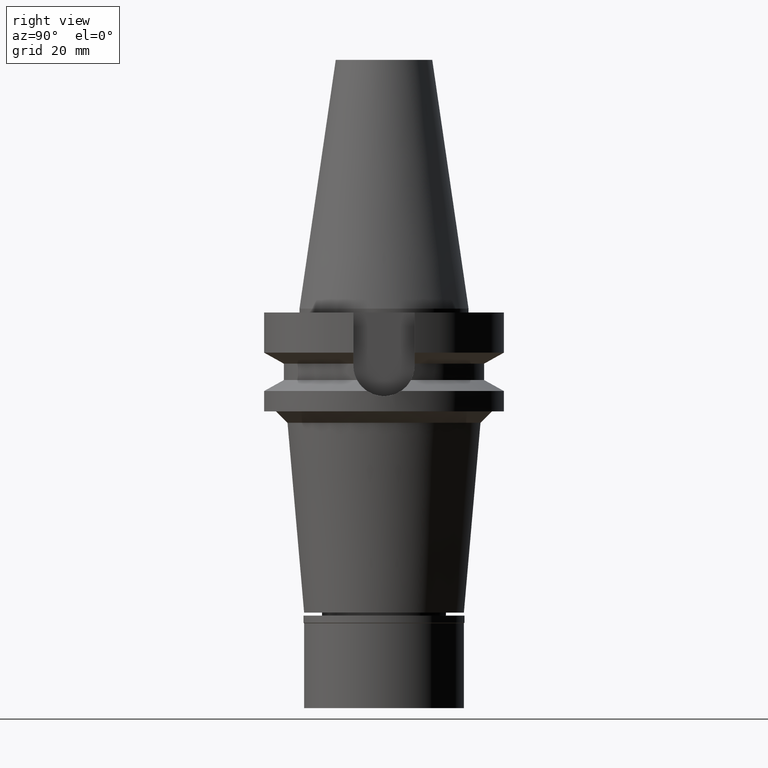
[diagram: clean part render]
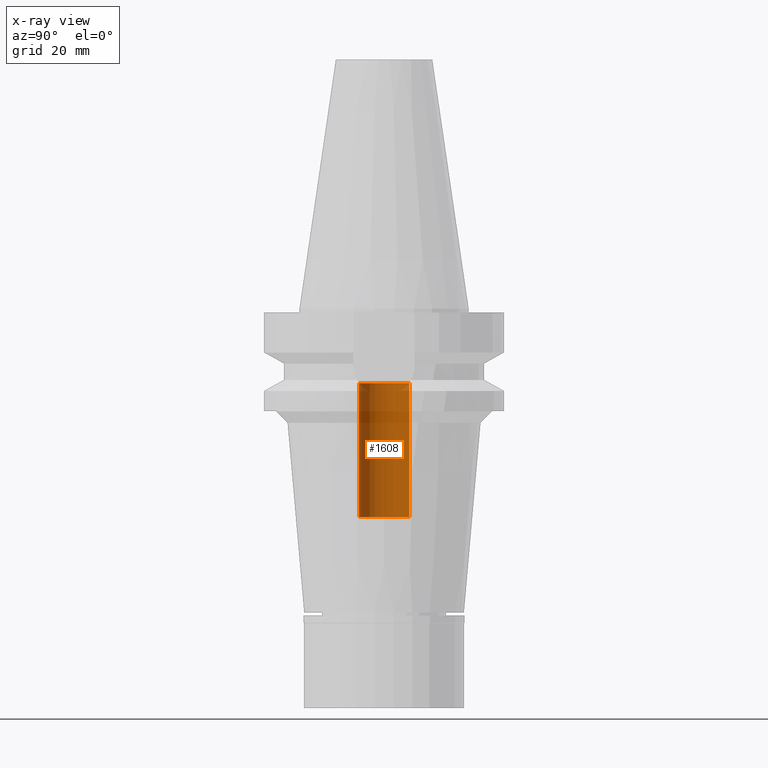
[diagram: x-ray — body ghosted, one internal face saturated and labeled with its STEP entity id]
A machine part, right view, then the same camera in x-ray: the body is ghosted and one INTERNAL B-rep face — a face not visible from any outside direction — is saturated and labeled: STEP entity #1608.
In plain terms, the highlighted cylindrical surface (edge-blend (fillet) strip) has radius 6.65 mm, axis along (0, 0, -1).
Its self-contained STEP definition (entity closure, byte-faithful):
#7 = CARTESIAN_POINT ( 'NONE',  ( 0.0000000000000000000, 2.125313287579999899E-14, 73.54500000000000171 ) ) ;
#36 = CYLINDRICAL_SURFACE ( 'NONE', #2749, 6.649999999999999467 ) ;
#43 = EDGE_CURVE ( 'NONE', #2027, #1996, #2841, .T. ) ;
#45 = EDGE_CURVE ( 'NONE', #2008, #1996, #1378, .T. ) ;
#273 = EDGE_CURVE ( 'NONE', #2027, #878, #865, .T. ) ;
#366 = VECTOR ( 'NONE', #533, 1000.000000000000000 ) ;
#483 = ORIENTED_EDGE ( 'NONE', *, *, #45, .T. ) ;
#533 = DIRECTION ( 'NONE',  ( 0.0000000000000000000, 0.0000000000000000000, 1.000000000000000000 ) ) ;
#648 = DIRECTION ( 'NONE',  ( 0.0000000000000000000, 0.0000000000000000000, -1.000000000000000000 ) ) ;
#673 = DIRECTION ( 'NONE',  ( 0.0000000000000000000, 0.0000000000000000000, 1.000000000000000000 ) ) ;
#764 = CARTESIAN_POINT ( 'NONE',  ( 0.0000000000000000000, 6.649999999999999467, -54.80000000000000426 ) ) ;
#807 = EDGE_LOOP ( 'NONE', ( #483, #2318, #954, #2330 ) ) ;
#865 = CIRCLE ( 'NONE', #1471, 6.649999999999999467 ) ;
#878 = VERTEX_POINT ( 'NONE', #1403 ) ;
#907 = DIRECTION ( 'NONE',  ( 0.0000000000000000000, 0.0000000000000000000, 1.000000000000000000 ) ) ;
#954 = ORIENTED_EDGE ( 'NONE', *, *, #273, .T. ) ;
#966 = DIRECTION ( 'NONE',  ( 0.0000000000000000000, -1.000000000000000000, 0.0000000000000000000 ) ) ;
#1000 = FACE_OUTER_BOUND ( 'NONE', #807, .T. ) ;
#1378 = CIRCLE ( 'NONE', #1681, 6.649999999999999467 ) ;
#1403 = CARTESIAN_POINT ( 'NONE',  ( 0.0000000000000000000, 6.649999999999999467, -54.80000000000000426 ) ) ;
#1471 = AXIS2_PLACEMENT_3D ( 'NONE', #1582, #648, #2836 ) ;
#1582 = CARTESIAN_POINT ( 'NONE',  ( 0.0000000000000000000, 2.125313287579999899E-14, -54.80000000000000426 ) ) ;
#1608 = ADVANCED_FACE ( 'NONE', ( #1000 ), #36, .F. ) ;
#1681 = AXIS2_PLACEMENT_3D ( 'NONE', #2860, #673, #2927 ) ;
#1852 = CARTESIAN_POINT ( 'NONE',  ( 0.0000000000000000000, -6.649999999999999467, -54.80000000000000426 ) ) ;
#1996 = VERTEX_POINT ( 'NONE', #2817 ) ;
#2008 = VERTEX_POINT ( 'NONE', #2156 ) ;
#2027 = VERTEX_POINT ( 'NONE', #1852 ) ;
#2131 = CARTESIAN_POINT ( 'NONE',  ( 0.0000000000000000000, -6.649999999999999467, -54.80000000000000426 ) ) ;
#2156 = CARTESIAN_POINT ( 'NONE',  ( 0.0000000000000000000, 6.649999999999999467, -19.59999999999999787 ) ) ;
#2211 = DIRECTION ( 'NONE',  ( 0.0000000000000000000, 0.0000000000000000000, -1.000000000000000000 ) ) ;
#2318 = ORIENTED_EDGE ( 'NONE', *, *, #43, .F. ) ;
#2330 = ORIENTED_EDGE ( 'NONE', *, *, #2822, .T. ) ;
#2530 = LINE ( 'NONE', #764, #366 ) ;
#2749 = AXIS2_PLACEMENT_3D ( 'NONE', #7, #2211, #966 ) ;
#2817 = CARTESIAN_POINT ( 'NONE',  ( 0.0000000000000000000, -6.649999999999999467, -19.59999999999999787 ) ) ;
#2822 = EDGE_CURVE ( 'NONE', #878, #2008, #2530, .T. ) ;
#2836 = DIRECTION ( 'NONE',  ( 0.0000000000000000000, -1.000000000000000000, 0.0000000000000000000 ) ) ;
#2841 = LINE ( 'NONE', #2131, #2858 ) ;
#2858 = VECTOR ( 'NONE', #907, 1000.000000000000000 ) ;
#2860 = CARTESIAN_POINT ( 'NONE',  ( 0.0000000000000000000, 2.125313287579999899E-14, -19.59999999999999787 ) ) ;
#2927 = DIRECTION ( 'NONE',  ( 0.0000000000000000000, 1.000000000000000000, 0.0000000000000000000 ) ) ;